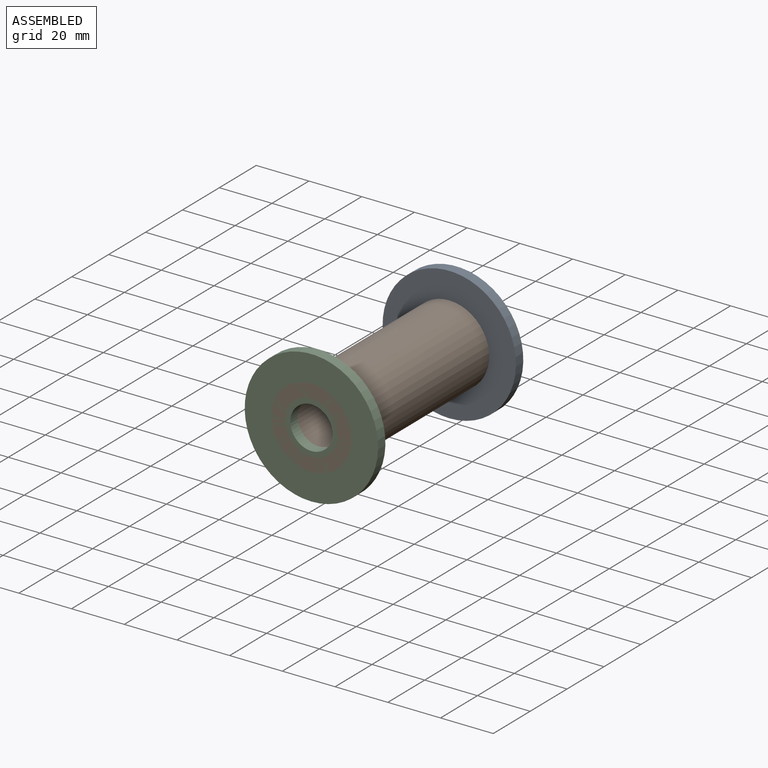
[diagram: assembled view]
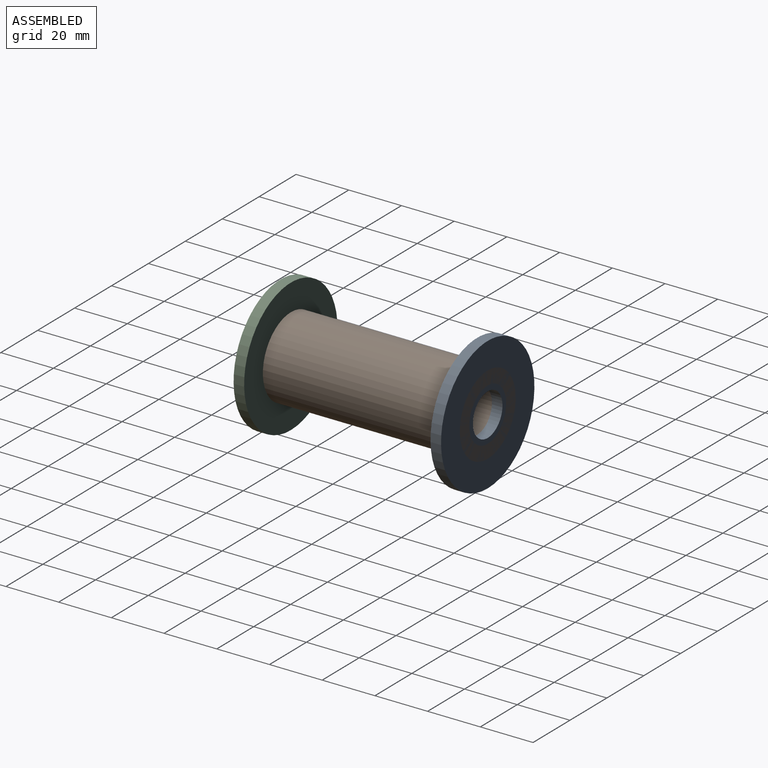
[diagram: assembled view, second angle]
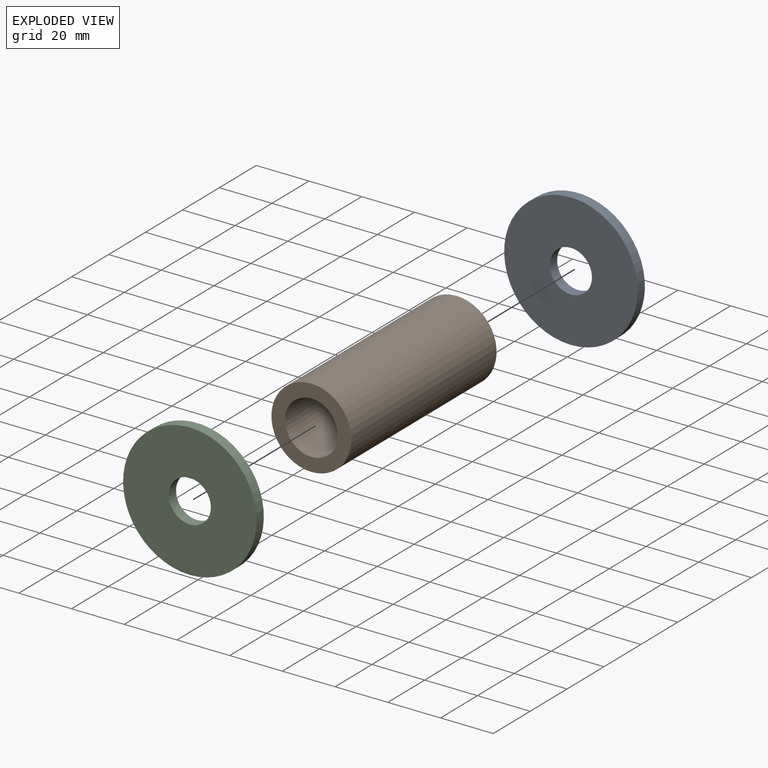
[diagram: exploded view]
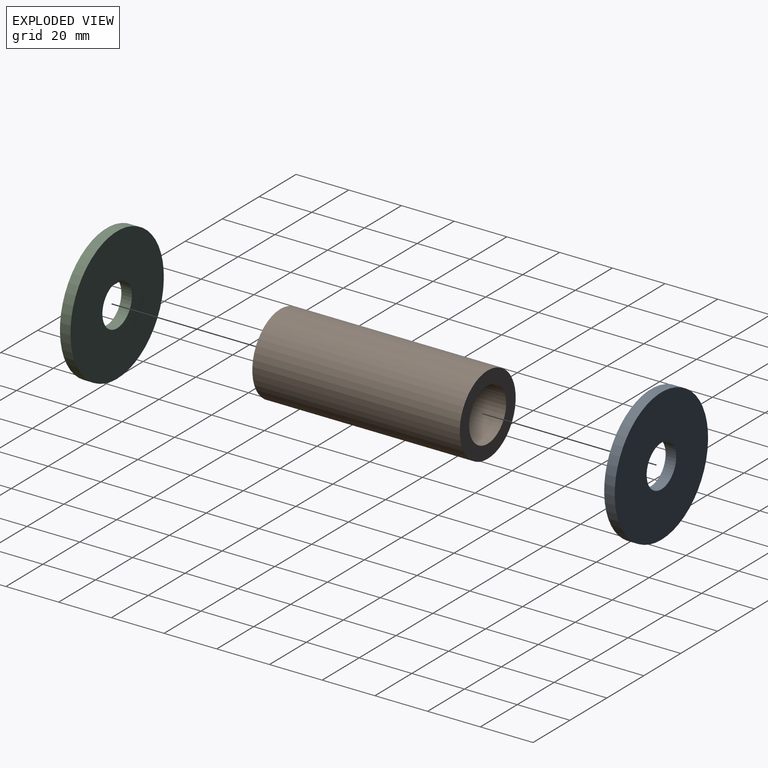
[diagram: exploded view, second angle]
ASSEMBLY  parts=3 mates=2
PART A: 4 faces, bbox 4x50.6x50.6 mm
  f0: cylinder r=8mm len=16mm, axis (1,0,0), area 201.1mm2, adj f1,f3
  f1: plane 50.59x50.59mm, normal (1,0,0), area 1809.4mm2, adj f0,f2
  f2: cylinder r=25.3mm len=50.59mm, axis (1,0,0), area 635.8mm2, adj f1,f3
  f3: plane 50.59x50.59mm, normal (-1,0,0), area 1809.4mm2, adj f0,f2
PART B: 4 faces, bbox 30.3x78.7x30.3 mm
  f0: plane 30.32x30.32mm, normal (0,-1,0), area 408mm2, adj f1,f3
  f1: cylinder r=10mm len=78.71mm, axis (0,-1,0), area 4945.5mm2, adj f0,f2
  f2: plane 30.32x30.32mm, normal (0,1,0), area 408mm2, adj f1,f3
  f3: cylinder r=15.16mm len=78.71mm, axis (0,-1,0), area 7498mm2, adj f0,f2
PART C: same geometry as A
PLACE A rot(axis=(0,0,-1),90deg) t=(-2.2,39.25,-0.23)mm
PLACE B t=(-2.2,-4.01,-0.23)mm
PLACE C rot(axis=(0,0,1),90deg) t=(-2.2,-31.46,-0.23)mm
MATE fastened B.f1 <-> A.f0  axis (0,-1,0) through (-2.2,43.25,-0.23)mm
MATE fastened B.f1 <-> C.f0  axis (0,-1,0) through (-2.2,-35.46,-0.23)mm
